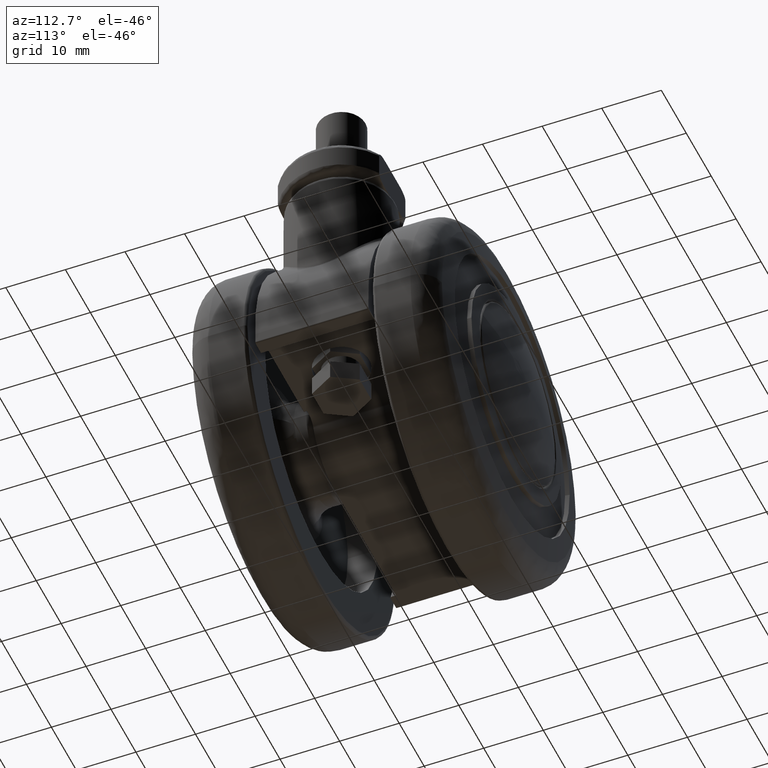
[diagram: clean part render]
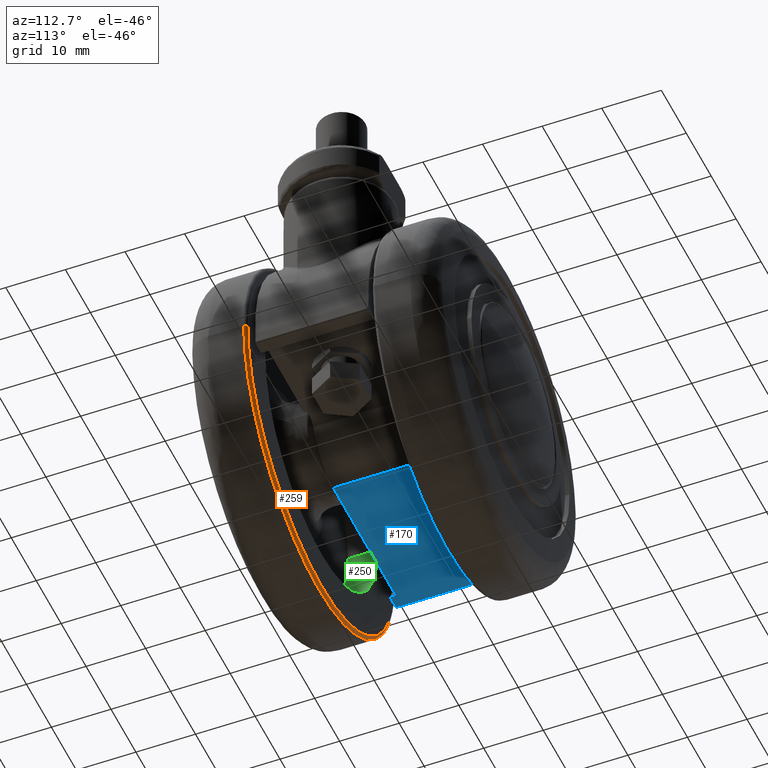
[diagram: same view with three faces highlighted in distinct colors, each labeled with its STEP entity id]
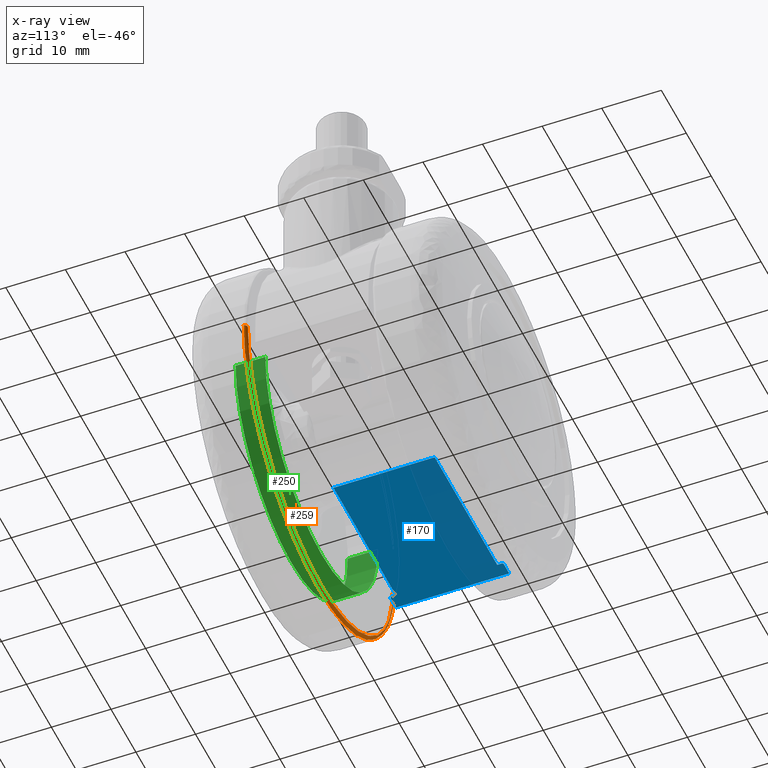
[diagram: x-ray of the same camera — body ghosted, the three highlighted faces saturated]
A machine part, auxiliary view with three faces highlighted in distinct colors.
The next image is the same camera in x-ray (body ghosted, the three faces saturated) — at least one of them is partly hidden behind the body in this view.
Their STEP definitions:

[orange] entity #259 — the highlighted face is a freeform B-spline surface patch.
#259=ADVANCED_FACE('',(#1332),#1331,.T.);
#1331=( BOUNDED_SURFACE() B_SPLINE_SURFACE( 2,2,((#3933,#3934,#3935,#3936,#3937),(#3938,#3939,#3940,#3941,#3942),(#3943,#3944,#3945,#3946,#3947),(#3948,#3949,#3950,#3951,#3952),(#3953,#3954,#3955,#3956,#3957)), .UNSPECIFIED.,.F.,.F.,.F.) B_SPLINE_SURFACE_WITH_KNOTS((3,2,3),(3,2,3),(0.00000000000E+00,5.00000000000E-01,1.00000000000E+00),(0.00000000000E+00,5.00000000000E-01,1.00000000000E+00), .UNSPECIFIED. ) GEOMETRIC_REPRESENTATION_ITEM() RATIONAL_B_SPLINE_SURFACE(((1.00000000000E+00,7.07106781187E-01,1.00000000000E+00,7.07106781187E-01,1.00000000000E+00),(7.07106781187E-01,5.00000000000E-01,7.07106781187E-01,5.00000000000E-01,7.07106781187E-01),(1.00000000000E+00,7.07106781187E-01,1.00000000000E+00,7.07106781187E-01,1.00000000000E+00),(7.07106781187E-01,5.00000000000E-01,7.07106781187E-01,5.00000000000E-01,7.07106781187E-01),(1.00000000000E+00,7.07106781187E-01,1.00000000000E+00,7.07106781187E-01,1.00000000000E+00))) REPRESENTATION_ITEM('') SURFACE() );
#1332=FACE_OUTER_BOUND('',#3958,.T.);
#3933=CARTESIAN_POINT('',(-2.90000000000E+01,-3.55135842608E-15,2.50000000000E+00));
#3934=CARTESIAN_POINT('',(-2.90000000000E+01,-3.55135842608E-15,2.00000000000E+00));
#3935=CARTESIAN_POINT('',(-2.95000000000E+01,-3.61258874378E-15,2.00000000000E+00));
#3936=CARTESIAN_POINT('',(-3.00000000000E+01,-3.67381906147E-15,2.00000000000E+00));
#3937=CARTESIAN_POINT('',(-3.00000000000E+01,-3.67381906147E-15,2.50000000000E+00));
#3938=CARTESIAN_POINT('',(-2.90000000000E+01,-2.90000000000E+01,2.50000000000E+00));
#3939=CARTESIAN_POINT('',(-2.90000000000E+01,-2.90000000000E+01,2.00000000000E+00));
#3940=CARTESIAN_POINT('',(-2.95000000000E+01,-2.95000000000E+01,2.00000000000E+00));
#3941=CARTESIAN_POINT('',(-3.00000000000E+01,-3.00000000000E+01,2.00000000000E+00));
#3942=CARTESIAN_POINT('',(-3.00000000000E+01,-3.00000000000E+01,2.50000000000E+00));
#3943=CARTESIAN_POINT('',(1.77562056732E-15,-2.90000000000E+01,2.50000000000E+00));
#3944=CARTESIAN_POINT('',(1.77562056732E-15,-2.90000000000E+01,2.00000000000E+00));
#3945=CARTESIAN_POINT('',(1.80623471503E-15,-2.95000000000E+01,2.00000000000E+00));
#3946=CARTESIAN_POINT('',(1.83684886275E-15,-3.00000000000E+01,2.00000000000E+00));
#3947=CARTESIAN_POINT('',(1.83684886275E-15,-3.00000000000E+01,2.50000000000E+00));
#3948=CARTESIAN_POINT('',(2.90000000000E+01,-2.90000000000E+01,2.50000000000E+00));
#3949=CARTESIAN_POINT('',(2.90000000000E+01,-2.90000000000E+01,2.00000000000E+00));
#3950=CARTESIAN_POINT('',(2.95000000000E+01,-2.95000000000E+01,2.00000000000E+00));
#3951=CARTESIAN_POINT('',(3.00000000000E+01,-3.00000000000E+01,2.00000000000E+00));
#3952=CARTESIAN_POINT('',(3.00000000000E+01,-3.00000000000E+01,2.50000000000E+00));
#3953=CARTESIAN_POINT('',(2.90000000000E+01,-1.17291442430E-19,2.50000000000E+00));
#3954=CARTESIAN_POINT('',(2.90000000000E+01,-1.17291442430E-19,2.00000000000E+00));
#3955=CARTESIAN_POINT('',(2.95000000000E+01,-1.19313708679E-19,2.00000000000E+00));
#3956=CARTESIAN_POINT('',(3.00000000000E+01,-1.21335974928E-19,2.00000000000E+00));
#3957=CARTESIAN_POINT('',(3.00000000000E+01,-1.21335974927E-19,2.50000000000E+00));
#3958=EDGE_LOOP('',(#4988,#4989,#4990,#4991));
#4988=ORIENTED_EDGE('',*,*,#5480,.F.);
#4989=ORIENTED_EDGE('',*,*,#5481,.F.);
#4990=ORIENTED_EDGE('',*,*,#5419,.F.);
#4991=ORIENTED_EDGE('',*,*,#5482,.T.);
#5419=EDGE_CURVE('',#6904,#6905,#6906,.T.);
#5480=EDGE_CURVE('',#7310,#7311,#7312,.T.);
#5481=EDGE_CURVE('',#6905,#7310,#7318,.T.);
#5482=EDGE_CURVE('',#6904,#7311,#7324,.T.);
#6904=VERTEX_POINT('',#9151);
#6905=VERTEX_POINT('',#9152);
#6906=CIRCLE('',#9156,2.95000000000E+01);
#7310=VERTEX_POINT('',#9417);
#7311=VERTEX_POINT('',#9418);
#7312=CIRCLE('',#9422,3.00000000000E+01);
#7318=(BOUNDED_CURVE() B_SPLINE_CURVE(2,(#9423,#9424,#9425),.UNSPECIFIED.,.F.,.F.) B_SPLINE_CURVE_WITH_KNOTS((3,3),(5.00000000000E-01,1.00000000000E+00),.UNSPECIFIED.) CURVE() GEOMETRIC_REPRESENTATION_ITEM() RATIONAL_B_SPLINE_CURVE((1.00000000000E+00,7.07106781187E-01,1.00000000000E+00)) REPRESENTATION_ITEM('') );
#7324=(BOUNDED_CURVE() B_SPLINE_CURVE(3,(#9426,#9427,#9428,#9429),.UNSPECIFIED.,.F.,.F.) B_SPLINE_CURVE_WITH_KNOTS((4,4),(4.99998681775E-01,1.00000000000E+00),.UNSPECIFIED.) CURVE() GEOMETRIC_REPRESENTATION_ITEM() RATIONAL_B_SPLINE_CURVE((1.00000000000E+00,1.00000000000E+00,1.00000000000E+00,1.00000000000E+00)) REPRESENTATION_ITEM('') );
#9151=CARTESIAN_POINT('',(2.95000000000E+01,-3.07354836874E-17,2.00000000000E+00));
#9152=CARTESIAN_POINT('',(-2.95000000000E+01,-8.28966525053E-15,2.00000000000E+00));
#9153=CARTESIAN_POINT('',(0.00000000000E+00,0.00000000000E+00,2.00000000000E+00));
#9154=DIRECTION('',(0.00000000000E+00,0.00000000000E+00,-1.00000000000E+00));
#9155=DIRECTION('',(1.00000000000E+00,-1.23502516185E-16,-0.00000000000E+00));
#9156=AXIS2_PLACEMENT_3D('',#9153,#9154,#9155);
#9417=CARTESIAN_POINT('',(-3.00000000000E+01,2.36847578587E-15,2.50000000000E+00));
#9418=CARTESIAN_POINT('',(3.00000000000E+01,0.00000000000E+00,2.50000000000E+00));
#9419=CARTESIAN_POINT('',(0.00000000000E+00,0.00000000000E+00,2.50000000000E+00));
#9420=DIRECTION('',(0.00000000000E+00,0.00000000000E+00,1.00000000000E+00));
#9421=DIRECTION('',(1.00000000000E+00,-1.22460635382E-16,0.00000000000E+00));
#9422=AXIS2_PLACEMENT_3D('',#9419,#9420,#9421);
#9423=CARTESIAN_POINT('',(-2.95000000000E+01,-3.61258874378E-15,2.00000000000E+00));
#9424=CARTESIAN_POINT('',(-3.00000000000E+01,-3.67381906147E-15,2.00000000000E+00));
#9425=CARTESIAN_POINT('',(-3.00000000000E+01,-3.67381906147E-15,2.50000000000E+00));
#9426=CARTESIAN_POINT('',(2.94999981357E+01,4.73694639872E-15,2.00000000000E+00));
#9427=CARTESIAN_POINT('',(2.98047369532E+01,3.97070011560E-15,2.02859457831E+00));
#9428=CARTESIAN_POINT('',(2.99714042413E+01,3.97070183994E-15,2.19526124498E+00));
#9429=CARTESIAN_POINT('',(3.00000000000E+01,4.73695157173E-15,2.50000000000E+00));

[blue] entity #170 — the highlighted planar face has unit normal (0, 0, 1).
#170=ADVANCED_FACE('',(#431),#430,.F.);
#430=PLANE('',#2035);
#431=FACE_OUTER_BOUND('',#2036,.T.);
#2032=CARTESIAN_POINT('',(2.75036361232E+00,1.14000000000E+01,-8.50000000000E+00));
#2033=DIRECTION('',(0.00000000000E+00,0.00000000000E+00,1.00000000000E+00));
#2034=DIRECTION('',(-1.00000000000E+00,0.00000000000E+00,0.00000000000E+00));
#2035=AXIS2_PLACEMENT_3D('',#2032,#2033,#2034);
#2036=EDGE_LOOP('',(#4587,#4588,#4589,#4590,#4591,#4592,#4593,#4594,#4595,#4596));
#4587=ORIENTED_EDGE('',*,*,#5256,.T.);
#4588=ORIENTED_EDGE('',*,*,#5304,.T.);
#4589=ORIENTED_EDGE('',*,*,#5305,.F.);
#4590=ORIENTED_EDGE('',*,*,#5279,.F.);
#4591=ORIENTED_EDGE('',*,*,#5303,.F.);
#4592=ORIENTED_EDGE('',*,*,#5283,.F.);
#4593=ORIENTED_EDGE('',*,*,#5306,.F.);
#4594=ORIENTED_EDGE('',*,*,#5307,.T.);
#4595=ORIENTED_EDGE('',*,*,#5245,.F.);
#4596=ORIENTED_EDGE('',*,*,#5308,.T.);
#5245=EDGE_CURVE('',#5750,#5751,#5752,.T.);
#5256=EDGE_CURVE('',#5827,#5820,#5828,.T.);
#5279=EDGE_CURVE('',#5978,#5930,#5985,.T.);
#5283=EDGE_CURVE('',#6005,#6012,#6013,.T.);
#5303=EDGE_CURVE('',#6012,#5978,#6148,.T.);
#5304=EDGE_CURVE('',#5820,#6154,#6155,.T.);
#5305=EDGE_CURVE('',#5930,#6154,#6161,.T.);
#5306=EDGE_CURVE('',#6167,#6005,#6168,.T.);
#5307=EDGE_CURVE('',#6167,#5751,#6174,.T.);
#5308=EDGE_CURVE('',#5750,#5827,#6180,.T.);
#5750=VERTEX_POINT('',#8270);
#5751=VERTEX_POINT('',#8271);
#5752=LINE('',#8272,#8273);
#5820=VERTEX_POINT('',#8317);
#5827=VERTEX_POINT('',#8322);
#5828=LINE('',#8323,#8324);
#5930=VERTEX_POINT('',#8395);
#5978=VERTEX_POINT('',#8427);
#5985=LINE('',#8432,#8433);
#6005=VERTEX_POINT('',#8445);
#6012=VERTEX_POINT('',#8450);
#6013=LINE('',#8451,#8452);
#6148=LINE('',#8536,#8537);
#6154=VERTEX_POINT('',#8539);
#6155=(BOUNDED_CURVE() B_SPLINE_CURVE(3,(#8540,#8541,#8542,#8543,#8544,#8545),.UNSPECIFIED.,.F.,.F.) B_SPLINE_CURVE_WITH_KNOTS((4,2,4),(0.00000000000E+00,2.35557391075E-04,4.71114782150E-04),.UNSPECIFIED.) CURVE() GEOMETRIC_REPRESENTATION_ITEM() RATIONAL_B_SPLINE_CURVE((1.00000000000E+00,1.00000000000E+00,1.00000000000E+00,1.00000000000E+00,1.00000000000E+00,1.00000000000E+00)) REPRESENTATION_ITEM('') );
#6161=LINE('',#8546,#8547);
#6167=VERTEX_POINT('',#8549);
#6168=LINE('',#8550,#8551);
#6174=(BOUNDED_CURVE() B_SPLINE_CURVE(3,(#8553,#8554,#8555,#8556,#8557,#8558),.UNSPECIFIED.,.F.,.F.) B_SPLINE_CURVE_WITH_KNOTS((4,2,4),(0.00000000000E+00,2.35487950558E-04,4.70975901115E-04),.UNSPECIFIED.) CURVE() GEOMETRIC_REPRESENTATION_ITEM() RATIONAL_B_SPLINE_CURVE((1.00000000000E+00,1.00000000000E+00,1.00000000000E+00,1.00000000000E+00,1.00000000000E+00,1.00000000000E+00)) REPRESENTATION_ITEM('') );
#6180=LINE('',#8559,#8560);
#8270=CARTESIAN_POINT('',(-2.75036361232E+01,-9.50000000000E+00,-8.50000000000E+00));
#8271=CARTESIAN_POINT('',(-2.54163333311E+01,-9.50000000000E+00,-8.50000000000E+00));
#8272=CARTESIAN_POINT('',(-2.75036361232E+01,-9.50000000000E+00,-8.50000000000E+00));
#8273=VECTOR('',#8274,2.08730279212E+00);
#8274=DIRECTION('',(1.00000000000E+00,0.00000000000E+00,0.00000000000E+00));
#8317=CARTESIAN_POINT('',(-2.54163333311E+01,9.50000000000E+00,-8.50000000000E+00));
#8322=CARTESIAN_POINT('',(-2.75036361232E+01,9.50000000000E+00,-8.50000000000E+00));
#8323=CARTESIAN_POINT('',(-2.75036361232E+01,9.50000000000E+00,-8.50000000000E+00));
#8324=VECTOR('',#8325,2.08730279212E+00);
#8325=DIRECTION('',(1.00000000000E+00,0.00000000000E+00,0.00000000000E+00));
#8395=CARTESIAN_POINT('',(-2.51000000000E+01,8.50000000000E+00,-8.50000000000E+00));
#8427=CARTESIAN_POINT('',(5.20474889638E-16,8.50000000000E+00,-8.50000000000E+00));
#8432=CARTESIAN_POINT('',(5.20474889638E-16,8.50000000000E+00,-8.50000000000E+00));
#8433=VECTOR('',#8434,2.51000000000E+01);
#8434=DIRECTION('',(-1.00000000000E+00,0.00000000000E+00,0.00000000000E+00));
#8445=CARTESIAN_POINT('',(-2.51000000000E+01,-8.50000000000E+00,-8.50000000000E+00));
#8450=CARTESIAN_POINT('',(-1.56142466891E-15,-8.50000000000E+00,-8.50000000000E+00));
#8451=CARTESIAN_POINT('',(-2.51000000000E+01,-8.50000000000E+00,-8.50000000000E+00));
#8452=VECTOR('',#8453,2.51000000000E+01);
#8453=DIRECTION('',(1.00000000000E+00,0.00000000000E+00,0.00000000000E+00));
#8536=CARTESIAN_POINT('',(-1.56142466891E-15,-8.50000000000E+00,-8.50000000000E+00));
#8537=VECTOR('',#8538,1.70000000000E+01);
#8538=DIRECTION('',(1.22464679915E-16,1.00000000000E+00,0.00000000000E+00));
#8539=CARTESIAN_POINT('',(-2.51000000000E+01,9.21063821153E+00,-8.50000000000E+00));
#8540=CARTESIAN_POINT('',(-2.54163333311E+01,9.50000000000E+00,-8.50000000000E+00));
#8541=CARTESIAN_POINT('',(-2.53367025178E+01,9.50000000000E+00,-8.50000000000E+00));
#8542=CARTESIAN_POINT('',(-2.52586580556E+01,9.47121234383E+00,-8.50000000000E+00));
#8543=CARTESIAN_POINT('',(-2.51404852168E+01,9.36594815463E+00,-8.50000000000E+00));
#8544=CARTESIAN_POINT('',(-2.51029859606E+01,9.29034370034E+00,-8.50000000000E+00));
#8545=CARTESIAN_POINT('',(-2.51000000000E+01,9.21063821153E+00,-8.50000000000E+00));
#8546=CARTESIAN_POINT('',(-2.51000000000E+01,8.50000000000E+00,-8.50000000000E+00));
#8547=VECTOR('',#8548,7.10638211527E-01);
#8548=DIRECTION('',(0.00000000000E+00,1.00000000000E+00,0.00000000000E+00));
#8549=CARTESIAN_POINT('',(-2.51000000000E+01,-9.21063821153E+00,-8.50000000000E+00));
#8550=CARTESIAN_POINT('',(-2.51000000000E+01,-9.21063821153E+00,-8.50000000000E+00));
#8551=VECTOR('',#8552,7.10638211527E-01);
#8552=DIRECTION('',(0.00000000000E+00,1.00000000000E+00,0.00000000000E+00));
#8553=CARTESIAN_POINT('',(-2.51000000000E+01,-9.21063821153E+00,-8.50000000000E+00));
#8554=CARTESIAN_POINT('',(-2.51029820436E+01,-9.29023914239E+00,-8.50000000000E+00));
#8555=CARTESIAN_POINT('',(-2.51407587466E+01,-9.36611911874E+00,-8.50000000000E+00));
#8556=CARTESIAN_POINT('',(-2.52580648064E+01,-9.47075638719E+00,-8.50000000000E+00));
#8557=CARTESIAN_POINT('',(-2.53367886951E+01,-9.50000000000E+00,-8.50000000000E+00));
#8558=CARTESIAN_POINT('',(-2.54163333311E+01,-9.50000000000E+00,-8.50000000000E+00));
#8559=CARTESIAN_POINT('',(-2.75036361232E+01,-9.50000000000E+00,-8.50000000000E+00));
#8560=VECTOR('',#8561,1.90000000000E+01);
#8561=DIRECTION('',(0.00000000000E+00,1.00000000000E+00,0.00000000000E+00));

[green] entity #250 — the highlighted cylindrical surface (partial cylindrical patch) has radius 22.5 mm, axis along (-0, 1, -0).
#250=ADVANCED_FACE('',(#1242),#1241,.F.);
#1241=CYLINDRICAL_SURFACE('',#3879,2.25000000000E+01);
#1242=FACE_OUTER_BOUND('',#3880,.T.);
#3876=CARTESIAN_POINT('',(0.00000000000E+00,0.00000000000E+00,4.50000000000E+00));
#3877=DIRECTION('',(-0.00000000000E+00,-0.00000000000E+00,-1.00000000000E+00));
#3878=DIRECTION('',(-1.00000000000E+00,-0.00000000000E+00,-0.00000000000E+00));
#3879=AXIS2_PLACEMENT_3D('',#3876,#3877,#3878);
#3880=EDGE_LOOP('',(#4944,#4945,#4946,#4947));
#4944=ORIENTED_EDGE('',*,*,#5422,.T.);
#4945=ORIENTED_EDGE('',*,*,#5463,.F.);
#4946=ORIENTED_EDGE('',*,*,#5429,.T.);
#4947=ORIENTED_EDGE('',*,*,#5464,.T.);
#5422=EDGE_CURVE('',#6926,#6918,#6927,.T.);
#5429=EDGE_CURVE('',#6975,#6967,#6976,.T.);
#5463=EDGE_CURVE('',#6975,#6918,#7204,.T.);
#5464=EDGE_CURVE('',#6967,#6926,#7210,.T.);
#6918=VERTEX_POINT('',#9161);
#6926=VERTEX_POINT('',#9167);
#6927=CIRCLE('',#9171,2.25000000000E+01);
#6967=VERTEX_POINT('',#9196);
#6975=VERTEX_POINT('',#9202);
#6976=CIRCLE('',#9206,2.25000000000E+01);
#7204=(BOUNDED_CURVE() B_SPLINE_CURVE(1,(#9365,#9366),.UNSPECIFIED.,.F.,.F.) B_SPLINE_CURVE_WITH_KNOTS((2,2),(8.33333313467E-02,9.16666664002E-01),.UNSPECIFIED.) CURVE() GEOMETRIC_REPRESENTATION_ITEM() RATIONAL_B_SPLINE_CURVE((1.00000000000E+00,1.00000000000E+00)) REPRESENTATION_ITEM('') );
#7210=(BOUNDED_CURVE() B_SPLINE_CURVE(1,(#9367,#9368),.UNSPECIFIED.,.F.,.F.) B_SPLINE_CURVE_WITH_KNOTS((2,2),(8.33333333333E-02,9.16666666667E-01),.UNSPECIFIED.) CURVE() GEOMETRIC_REPRESENTATION_ITEM() RATIONAL_B_SPLINE_CURVE((7.50000000000E-01,7.50000000000E-01)) REPRESENTATION_ITEM('') );
#9161=CARTESIAN_POINT('',(-2.25000000000E+01,-8.03386126938E-08,2.00000000000E+00));
#9167=CARTESIAN_POINT('',(2.24999999999E+01,-5.45503734179E-05,2.00000000000E+00));
#9168=CARTESIAN_POINT('',(0.00000000000E+00,0.00000000000E+00,2.00000000000E+00));
#9169=DIRECTION('',(0.00000000000E+00,0.00000000000E+00,-1.00000000000E+00));
#9170=DIRECTION('',(-9.95425928997E-01,9.55364845470E-02,0.00000000000E+00));
#9171=AXIS2_PLACEMENT_3D('',#9168,#9169,#9170);
#9196=CARTESIAN_POINT('',(2.24999999999E+01,-5.45502832697E-05,7.00000000000E+00));
#9202=CARTESIAN_POINT('',(-2.25000000000E+01,-8.03386128400E-08,7.00000000000E+00));
#9203=CARTESIAN_POINT('',(0.00000000000E+00,0.00000000000E+00,7.00000000000E+00));
#9204=DIRECTION('',(0.00000000000E+00,0.00000000000E+00,1.00000000000E+00));
#9205=DIRECTION('',(-9.95425928997E-01,9.55364845470E-02,0.00000000000E+00));
#9206=AXIS2_PLACEMENT_3D('',#9203,#9204,#9205);
#9365=CARTESIAN_POINT('',(-2.25000000000E+01,0.00000000000E+00,7.00000001192E+00));
#9366=CARTESIAN_POINT('',(-2.25000000000E+01,0.00000000000E+00,2.00000001599E+00));
#9367=CARTESIAN_POINT('',(2.25000000000E+01,0.00000000000E+00,7.00000000000E+00));
#9368=CARTESIAN_POINT('',(2.25000000000E+01,0.00000000000E+00,2.00000000000E+00));